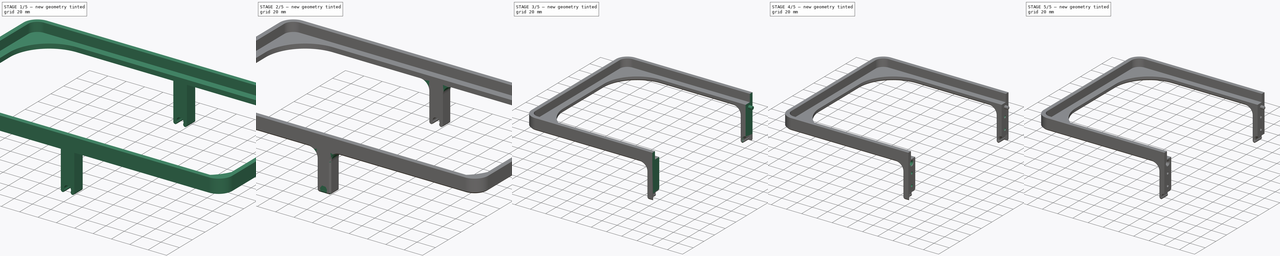
[diagram: build sequence overview — one tinted view per stage of 5, left to right]
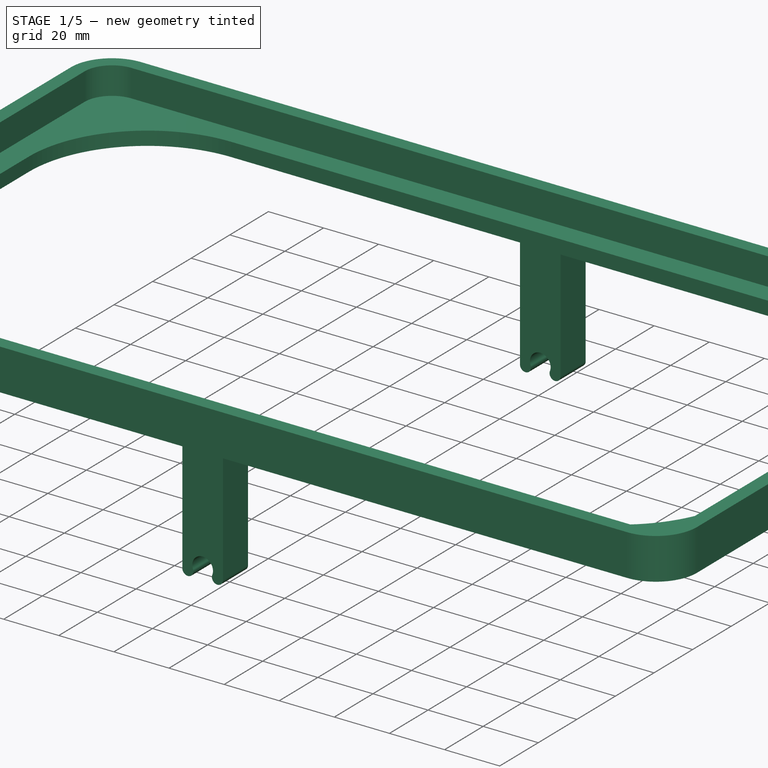
[diagram: stage 1 of 5 — iso view after this stage's code; geometry added in this stage tinted green]
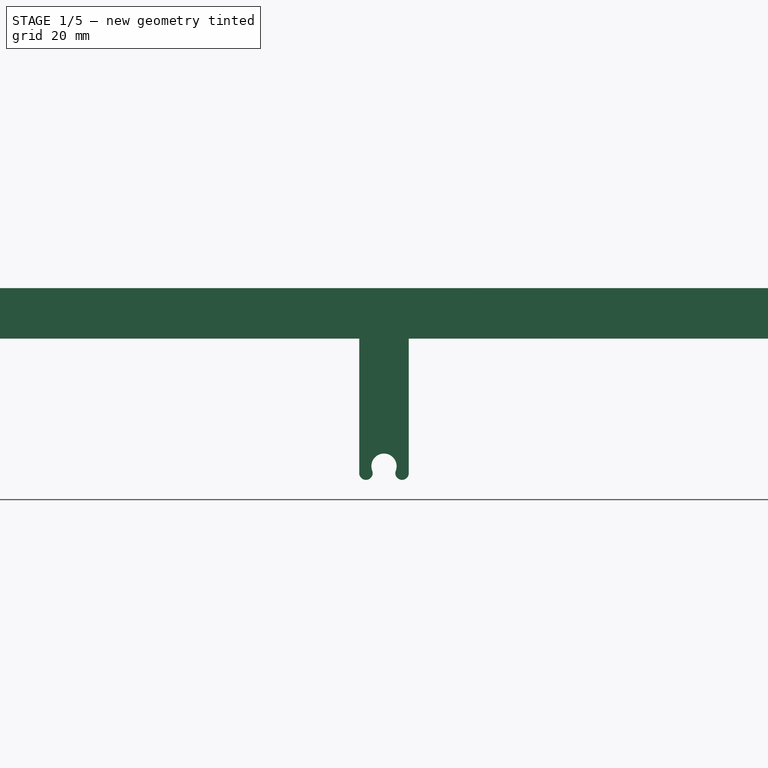
[diagram: stage 1 of 5 — front view after this stage's code; geometry added in this stage tinted green]
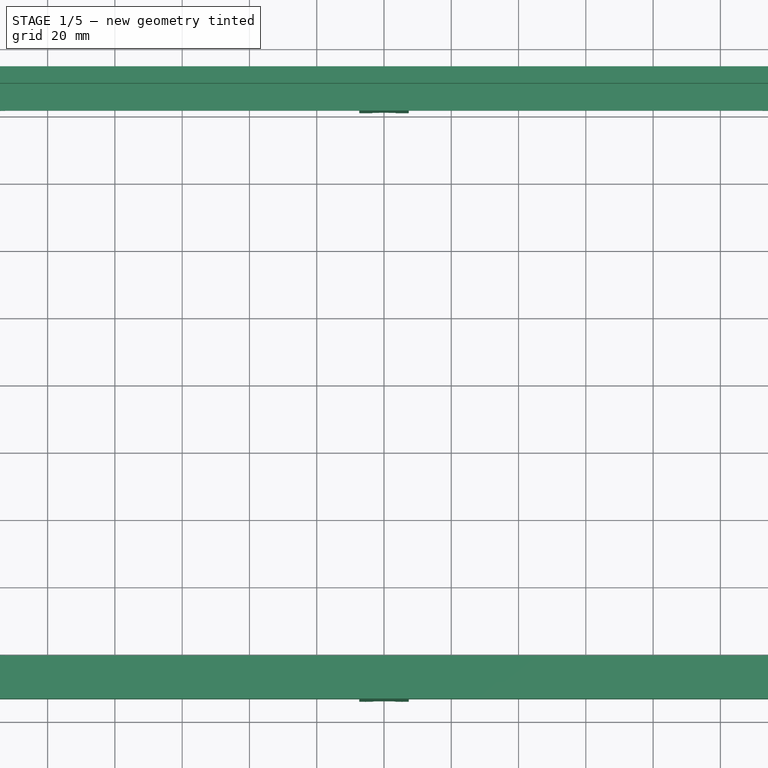
[diagram: stage 1 of 5 — top view after this stage's code; geometry added in this stage tinted green]
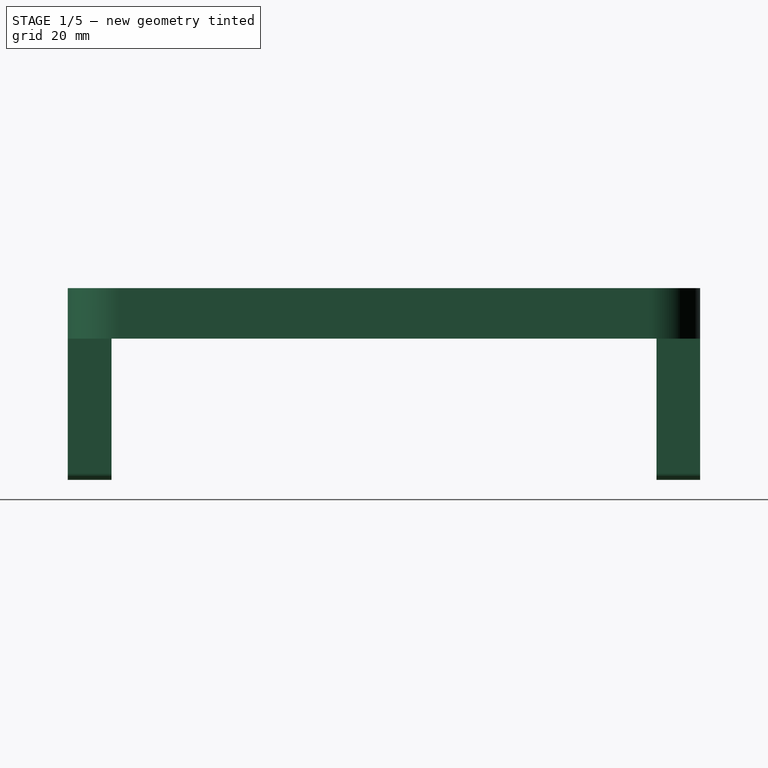
[diagram: stage 1 of 5 — right view after this stage's code; geometry added in this stage tinted green]
FCSTD DOCUMENT  (FreeCAD 0.19R21280 (Git))
Label: lid-other-half
License: All rights reserved
LicenseURL: http://en.wikipedia.org/wiki/All_rights_reserved
objects: Sketcher::SketchObject×10, PartDesign::Pocket×8, PartDesign::Pad×5, PartDesign::Chamfer×4, PartDesign::Mirrored×2, PartDesign::Fillet×1, PartDesign::Body×1
note: 49 computed .brp shape members not serialized (recipe doc carries the construction recipe); baked Part::Feature solids carry a one-line shape summary decoded from their .brp

FEATURE [Sketcher::SketchObject] Sketch
  MapMode = 5
  Support = -> [XY_Plane]
  sketch-geometry (16):
    g0: LineSegment StartX=-154 StartY=89 StartZ=0 EndX=154 EndY=89 EndZ=0
    g1: LineSegment StartX=164 StartY=79 StartZ=0 EndX=164 EndY=-79 EndZ=0
    g2: LineSegment StartX=154 StartY=-89 StartZ=0 EndX=-154 EndY=-89 EndZ=0
    g3: LineSegment StartX=-164 StartY=-79 StartZ=0 EndX=-164 EndY=79 EndZ=0
    g4: ArcOfCircle CenterX=-154 CenterY=79 CenterZ=0 NormalX=0 NormalY=0 NormalZ=1 AngleXU=0 Radius=10 StartAngle=1.5708 EndAngle=3.14159
    g5: ArcOfCircle CenterX=154 CenterY=79 CenterZ=0 NormalX=0 NormalY=0 NormalZ=1 AngleXU=0 Radius=10 StartAngle=-9e-16 EndAngle=1.5708
    g6: ArcOfCircle CenterX=154 CenterY=-79 CenterZ=0 NormalX=0 NormalY=0 NormalZ=1 AngleXU=0 Radius=10 StartAngle=4.71239 EndAngle=6.28319
    g7: ArcOfCircle CenterX=-154 CenterY=-79 CenterZ=0 NormalX=0 NormalY=0 NormalZ=1 AngleXU=0 Radius=10 StartAngle=3.14159 EndAngle=4.71239
    g8: LineSegment StartX=-154 StartY=94 StartZ=0 EndX=154 EndY=94 EndZ=0
    g9: LineSegment StartX=169 StartY=79 StartZ=0 EndX=169 EndY=-79 EndZ=0
    g10: LineSegment StartX=154 StartY=-94 StartZ=0 EndX=-154 EndY=-94 EndZ=0
    g11: LineSegment StartX=-169 StartY=-79 StartZ=0 EndX=-169 EndY=79 EndZ=0
    g12: ArcOfCircle CenterX=-154 CenterY=79 CenterZ=0 NormalX=0 NormalY=0 NormalZ=1 AngleXU=0 Radius=15 StartAngle=1.5708 EndAngle=3.14159
    g13: ArcOfCircle CenterX=154 CenterY=79 CenterZ=0 NormalX=0 NormalY=0 NormalZ=1 AngleXU=0 Radius=15 StartAngle=1e-16 EndAngle=1.5708
    g14: ArcOfCircle CenterX=154 CenterY=-79 CenterZ=0 NormalX=0 NormalY=0 NormalZ=1 AngleXU=0 Radius=15 StartAngle=4.71239 EndAngle=6.28319
    g15: ArcOfCircle CenterX=-154 CenterY=-79 CenterZ=0 NormalX=0 NormalY=0 NormalZ=1 AngleXU=0 Radius=15 StartAngle=3.14159 EndAngle=4.71239
  constraints (35):
    c: Tangent(g3,g4) = 1.5708
    c: Tangent(g0,g4) = 1.5708
    c: Tangent(g0,g5) = 1.5708
    c: Tangent(g1,g5) = 1.5708
    c: Tangent(g1,g6) = 1.5708
    c: Tangent(g2,g6) = 1.5708
    c: Tangent(g2,g7) = 1.5708
    c: Tangent(g3,g7) = 1.5708
    c: Equal(g5,g6)
    c: Equal(g6,g7)
    c: Equal(g7,g4)
    c: Symmetric(g3,g1,g-2)
    c: Symmetric(g3,g1,g-2)
    c: Symmetric(g3,g3,g-1)
    c: DistanceX(g3,g1) = 328
    c: DistanceY(g2,g0) = 178
    c: Radius(g5) = 10
    c: Tangent(g11,g12) = 1.5708
    c: Tangent(g8,g12) = 1.5708
    c: Tangent(g8,g13) = 1.5708
    c: Tangent(g9,g13) = 1.5708
    c: Tangent(g9,g14) = 1.5708
    c: Tangent(g10,g14) = 1.5708
    c: Tangent(g10,g15) = 1.5708
    c: Tangent(g11,g15) = 1.5708
    c: Horizontal(g8)
    c: Horizontal(g10)
    c: Vertical(g9)
    c: Vertical(g11)
    c: DistanceX(g11,g3) = 5
    c: DistanceY(g0,g8) = 5
    c: Equal(g14,g13)
    c: Equal(g13,g12)
    c: Coincident(g15,g7)
    c: Coincident(g13,g5)
FEATURE [PartDesign::Pad] Pad
  Length = 10
  Length2 = 100
  Profile = -> Sketch
  Type = 0
FEATURE [Sketcher::SketchObject] Sketch001
  MapMode = 5
  Support = -> [XY_Plane]
  sketch-geometry (32):
    g0: LineSegment [constr] StartX=-154 StartY=89 StartZ=0 EndX=154 EndY=89 EndZ=0
    g1: LineSegment [constr] StartX=164 StartY=79 StartZ=0 EndX=164 EndY=-79 EndZ=0
    g2: LineSegment [constr] StartX=154 StartY=-89 StartZ=0 EndX=-154 EndY=-89 EndZ=0
    g3: LineSegment [constr] StartX=-164 StartY=-79 StartZ=0 EndX=-164 EndY=79 EndZ=0
    g4: ArcOfCircle [constr] CenterX=-154 CenterY=79 CenterZ=0 NormalX=0 NormalY=0 NormalZ=1 AngleXU=0 Radius=10 StartAngle=1.5708 EndAngle=3.14159
    g5: ArcOfCircle [constr] CenterX=154 CenterY=79 CenterZ=0 NormalX=0 NormalY=0 NormalZ=1 AngleXU=0 Radius=10 StartAngle=-9e-16 EndAngle=1.5708
    g6: ArcOfCircle [constr] CenterX=154 CenterY=-79 CenterZ=0 NormalX=0 NormalY=0 NormalZ=1 AngleXU=0 Radius=10 StartAngle=4.71239 EndAngle=6.28319
    g7: ArcOfCircle [constr] CenterX=-154 CenterY=-79 CenterZ=0 NormalX=0 NormalY=0 NormalZ=1 AngleXU=0 Radius=10 StartAngle=3.14159 EndAngle=4.71239
    g8: LineSegment StartX=-154 StartY=94 StartZ=0 EndX=154 EndY=94 EndZ=0
    g9: LineSegment StartX=169 StartY=79 StartZ=0 EndX=169 EndY=-79 EndZ=0
    g10: LineSegment StartX=154 StartY=-94 StartZ=0 EndX=-154 EndY=-94 EndZ=0
    g11: LineSegment StartX=-169 StartY=-79 StartZ=0 EndX=-169 EndY=79 EndZ=0
    g12: ArcOfCircle CenterX=-154 CenterY=79 CenterZ=0 NormalX=0 NormalY=0 NormalZ=1 AngleXU=0 Radius=15 StartAngle=1.5708 EndAngle=3.14159
    g13: ArcOfCircle CenterX=154 CenterY=79 CenterZ=0 NormalX=0 NormalY=0 NormalZ=1 AngleXU=0 Radius=15 StartAngle=1e-16 EndAngle=1.5708
    g14: ArcOfCircle CenterX=154 CenterY=-79 CenterZ=0 NormalX=0 NormalY=0 NormalZ=1 AngleXU=0 Radius=15 StartAngle=4.71239 EndAngle=6.28319
    g15: ArcOfCircle CenterX=-154 CenterY=-79 CenterZ=0 NormalX=0 NormalY=0 NormalZ=1 AngleXU=0 Radius=15 StartAngle=3.14159 EndAngle=4.71239
    g16: LineSegment [constr] StartX=-150.5 StartY=37.81 StartZ=0 EndX=-150.5 EndY=-37.81 EndZ=0
    g17: LineSegment [constr] StartX=-112.31 StartY=-76 StartZ=0 EndX=112.31 EndY=-76 EndZ=0
    g18: LineSegment [constr] StartX=150.5 StartY=-37.81 StartZ=0 EndX=150.5 EndY=37.81 EndZ=0
    g19: LineSegment [constr] StartX=112.31 StartY=76 StartZ=0 EndX=-112.31 EndY=76 EndZ=0
    g20: ArcOfCircle [constr] CenterX=112.31 CenterY=37.81 CenterZ=0 NormalX=0 NormalY=0 NormalZ=1 AngleXU=0 Radius=38.19 StartAngle=0 EndAngle=1.5708
    g21: ArcOfCircle [constr] CenterX=112.31 CenterY=-37.81 CenterZ=0 NormalX=0 NormalY=0 NormalZ=1 AngleXU=0 Radius=38.19 StartAngle=4.71239 EndAngle=6.28319
    g22: ArcOfCircle [constr] CenterX=-112.31 CenterY=-37.81 CenterZ=0 NormalX=0 NormalY=0 NormalZ=1 AngleXU=0 Radius=38.19 StartAngle=3.14159 EndAngle=4.71239
    g23: ArcOfCircle [constr] CenterX=-112.31 CenterY=37.81 CenterZ=0 NormalX=0 NormalY=0 NormalZ=1 AngleXU=0 Radius=38.19 StartAngle=1.5708 EndAngle=3.14159
    g24: LineSegment StartX=112.31 StartY=81 StartZ=0 EndX=-112.31 EndY=81 EndZ=0
    g25: ArcOfCircle CenterX=-112.31 CenterY=37.81 CenterZ=0 NormalX=0 NormalY=0 NormalZ=1 AngleXU=0 Radius=43.19 StartAngle=1.5708 EndAngle=3.14159
    g26: LineSegment StartX=-155.5 StartY=37.81 StartZ=0 EndX=-155.5 EndY=-37.81 EndZ=0
    g27: ArcOfCircle CenterX=-112.31 CenterY=-37.81 CenterZ=0 NormalX=0 NormalY=0 NormalZ=1 AngleXU=0 Radius=43.19 StartAngle=3.14159 EndAngle=4.71239
    g28: LineSegment StartX=-112.31 StartY=-81 StartZ=0 EndX=112.31 EndY=-81 EndZ=0
    g29: ArcOfCircle CenterX=112.31 CenterY=-37.81 CenterZ=0 NormalX=0 NormalY=0 NormalZ=1 AngleXU=0 Radius=43.19 StartAngle=4.71239 EndAngle=6.28319
    g30: LineSegment StartX=155.5 StartY=-37.81 StartZ=0 EndX=155.5 EndY=37.81 EndZ=0
    g31: ArcOfCircle CenterX=112.31 CenterY=37.81 CenterZ=0 NormalX=0 NormalY=0 NormalZ=1 AngleXU=0 Radius=43.19 StartAngle=0 EndAngle=1.5708
  constraints (73):
    c: Tangent(g3,g4) = 1.5708
    c: Tangent(g0,g4) = 1.5708
    c: Tangent(g0,g5) = 1.5708
    c: Tangent(g1,g5) = 1.5708
    c: Tangent(g1,g6) = 1.5708
    c: Tangent(g2,g6) = 1.5708
    c: Tangent(g2,g7) = 1.5708
    c: Tangent(g3,g7) = 1.5708
    c: Equal(g5,g6)
    c: Equal(g6,g7)
    c: Equal(g7,g4)
    c: Symmetric(g3,g1,g-2)
    c: Symmetric(g3,g1,g-2)
    c: Symmetric(g3,g3,g-1)
    c: DistanceX(g3,g1) = 328
    c: DistanceY(g2,g0) = 178
    c: Radius(g5) = 10
    c: Tangent(g11,g12) = 1.5708
    c: Tangent(g8,g12) = 1.5708
    c: Tangent(g8,g13) = 1.5708
    c: Tangent(g9,g13) = 1.5708
    c: Tangent(g9,g14) = 1.5708
    c: Tangent(g10,g14) = 1.5708
    c: Tangent(g10,g15) = 1.5708
    c: Tangent(g11,g15) = 1.5708
    c: Horizontal(g8)
    c: Horizontal(g10)
    c: Vertical(g9)
    c: Vertical(g11)
    c: DistanceX(g11,g3) = 5
    c: DistanceY(g0,g8) = 5
    c: Equal(g14,g13)
    c: Equal(g13,g12)
    c: Coincident(g15,g7)
    c: Coincident(g13,g5)
    c: Vertical(g16)
    c: Horizontal(g17)
    c: Tangent(g19,g20) = -1.5708
    c: Tangent(g18,g20) = -1.5708
    c: Tangent(g18,g21) = -1.5708
    c: Tangent(g17,g21) = -1.5708
    c: Tangent(g17,g22) = -1.5708
    c: Tangent(g16,g22) = -1.5708
    c: Tangent(g16,g23) = -1.5708
    c: Tangent(g19,g23) = -1.5708
    c: DistanceX(g16,g18) = 301
    c: DistanceY(g17,g19) = 152
    c: Equal(g23,g20)
    c: Equal(g20,g21)
    c: Equal(g21,g22)
    c: Symmetric(g17,g19,g-1)
    c: Symmetric(g16,g18,g-2)
    c: Radius(g23) = 38.19
    c: Vertical(g26)
    c: Horizontal(g28)
    c: Tangent(g24,g31) = -1.5708
    c: Tangent(g30,g31) = -1.5708
    c: Tangent(g30,g29) = -1.5708
    c: Tangent(g28,g29) = -1.5708
    c: Tangent(g28,g27) = -1.5708
    c: Tangent(g26,g27) = -1.5708
    c: Tangent(g26,g25) = -1.5708
    c: Tangent(g24,g25) = -1.5708
    c: Vertical(g24,g19)
    c: Horizontal(g30,g18)
    c: Vertical(g24,g19)
    c: Horizontal(g24)
    c: Horizontal(g18,g29)
    c: Vertical(g28,g17)
    c: Vertical(g30)
    c: Vertical(g27,g17)
    c: Horizontal(g26,g16)
    c: DistanceY(g19,g24) = 5
FEATURE [PartDesign::Pad] Pad001
  BaseFeature = -> Pad
  Length = 5
  Length2 = 100
  Profile = -> Sketch001
  Reversed = true
  Type = 0
FEATURE [Sketcher::SketchObject] Sketch002
  ExternalGeometry = -> [Pad001]
  MapMode = 5
  Placement = pos=(0,94,0) rot=(0,0.707107,0.707107;3.14159rad)
  Support = -> [Pad001]
  sketch-geometry (6):
    g0: LineSegment StartX=-7.36667 StartY=-5 StartZ=0 EndX=7.36667 EndY=-5 EndZ=0
    g1: LineSegment StartX=-7.36667 StartY=-5 StartZ=0 EndX=-7.36667 EndY=-45 EndZ=0
    g2: LineSegment StartX=7.36667 StartY=-45 StartZ=0 EndX=7.36667 EndY=-5 EndZ=0
    g3: ArcOfCircle CenterX=5.36667 CenterY=-45 CenterZ=0 NormalX=0 NormalY=0 NormalZ=1 AngleXU=0 Radius=2 StartAngle=2.77438 EndAngle=6.28319
    g4: ArcOfCircle CenterX=-1e-16 CenterY=-42.9357 CenterZ=0 NormalX=0 NormalY=0 NormalZ=1 AngleXU=0 Radius=3.75 StartAngle=5.91598 EndAngle=9.79199
    g5: ArcOfCircle CenterX=-5.36667 CenterY=-45 CenterZ=0 NormalX=0 NormalY=0 NormalZ=1 AngleXU=0 Radius=2 StartAngle=3.14159 EndAngle=6.65039
  constraints (15):
    c: Symmetric(g0,g0,g-2)
    c: Coincident(g1,g0)
    c: Vertical(g1)
    c: Coincident(g2,g0)
    c: PointOnObject(g0,g-4)
    c: Symmetric(g2,g1,g-2)
    c: Tangent(g3,g2) = -1.5708
    c: Coincident(g5,g4)
    c: Tangent(g1,g5) = -1.5708
    c: Symmetric(g3,g4,g-2)
    c: Tangent(g4,g3) = 1.5708
    c: Diameter(g4) = 7.5
    c: Radius(g3) = 2
    c: DistanceX(g4,g3) = 7
    c: DistanceY(g1,g1) = 40
FEATURE [PartDesign::Pad] Pad002
  BaseFeature = -> Pad001
  Length = 10
  Length2 = 100
  Profile = -> Sketch002
  Reversed = true
  Type = 3
  UpToFace = -> Pad001 [Face27]
FEATURE [PartDesign::Mirrored] Mirrored
  BaseFeature = -> Pad002
  MirrorPlane = -> XZ_Plane
  Originals = -> [Pad002]
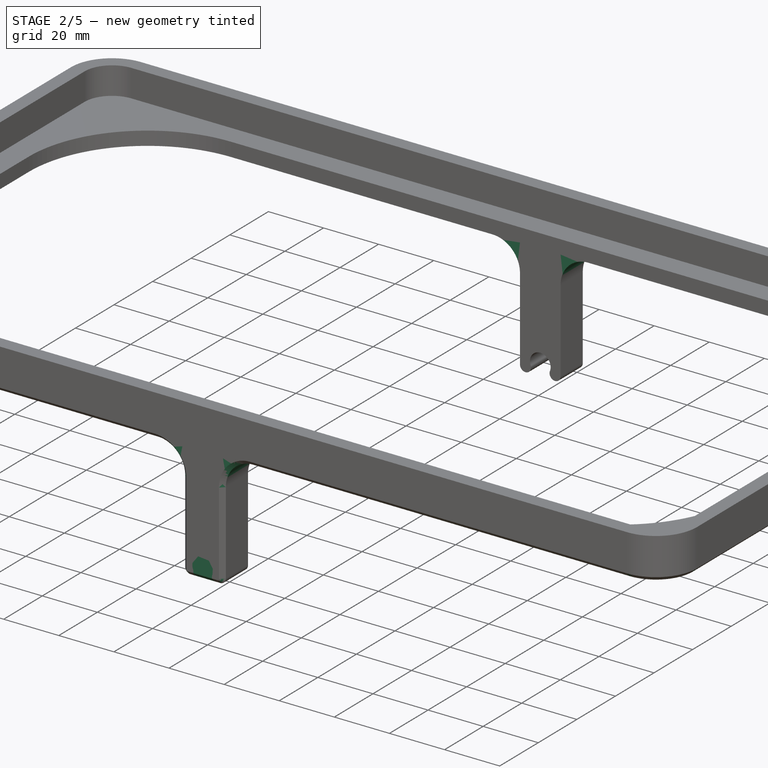
[diagram: stage 2 of 5 — iso view after this stage's code; geometry added in this stage tinted green]
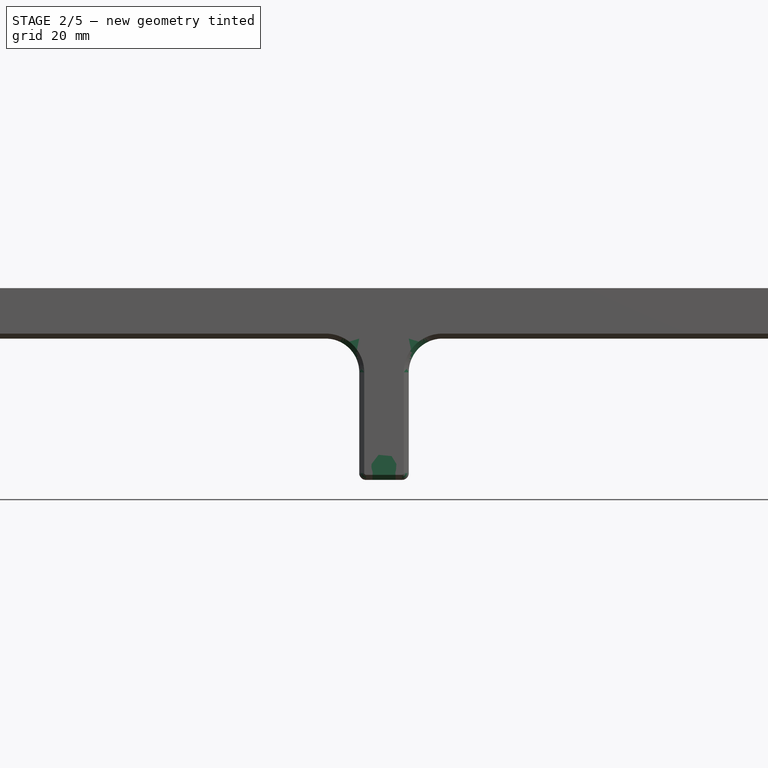
[diagram: stage 2 of 5 — front view after this stage's code; geometry added in this stage tinted green]
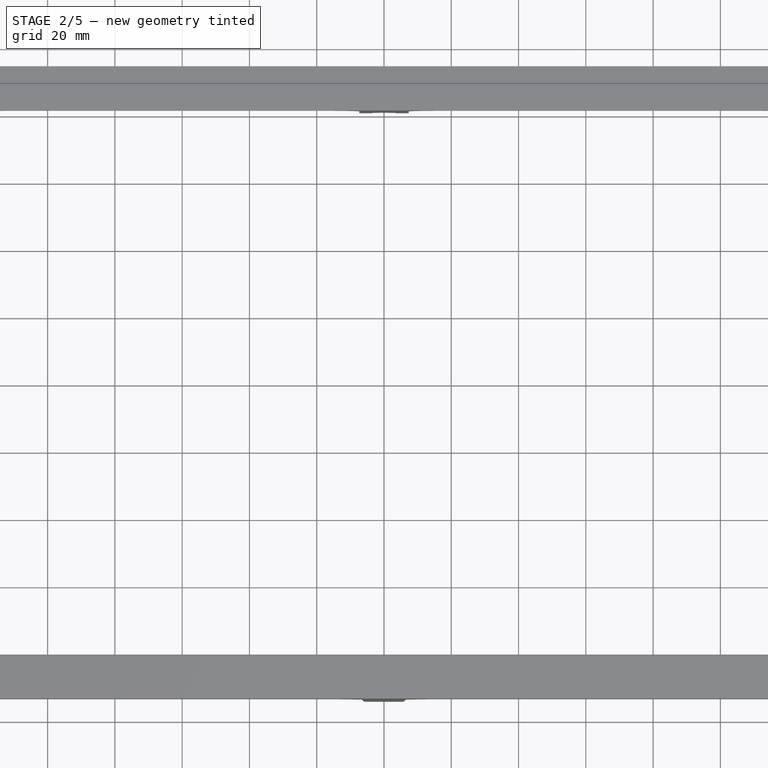
[diagram: stage 2 of 5 — top view after this stage's code; geometry added in this stage tinted green]
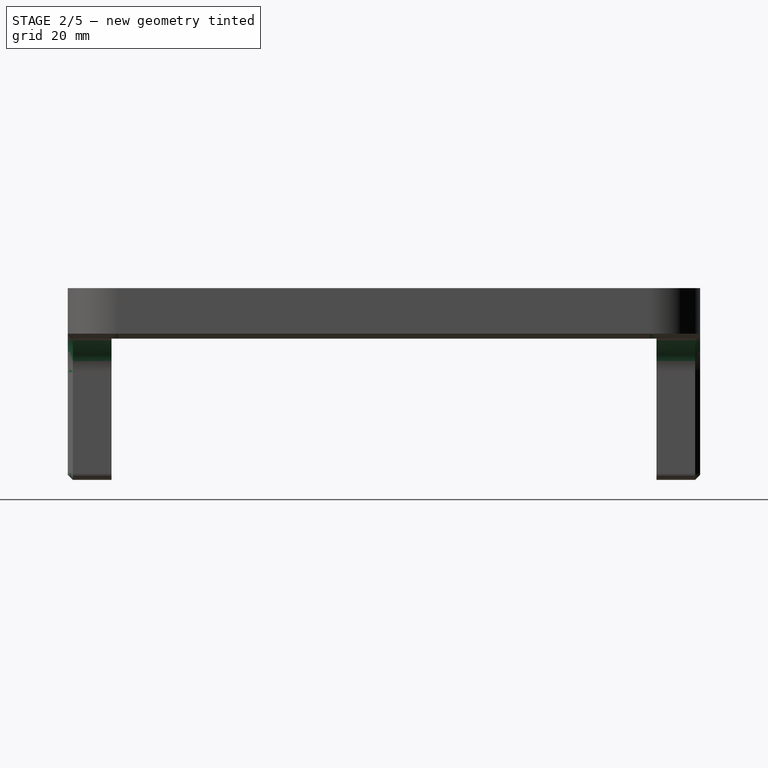
[diagram: stage 2 of 5 — right view after this stage's code; geometry added in this stage tinted green]
FEATURE [PartDesign::Fillet] Fillet
  Base = -> Mirrored [Edge100,Edge42,Edge36,Edge104]
  BaseFeature = -> Mirrored
  Radius = 10
  SupportTransform = true
FEATURE [Sketcher::SketchObject] Sketch003
  ExternalGeometry = -> [Fillet]
  MapMode = 5
  Placement = pos=(0,94,-3.38e-14) rot=(0,0.707107,0.707107;3.14159rad)
  Support = -> [Fillet]
  sketch-geometry (4):
    g0: LineSegment StartX=-5.36666 StartY=-47 StartZ=0 EndX=5.36667 EndY=-47 EndZ=0
    g1: ArcOfCircle CenterX=-5.36667 CenterY=-45 CenterZ=0 NormalX=0 NormalY=0 NormalZ=1 AngleXU=0 Radius=2 StartAngle=4.71239 EndAngle=6.65039
    g2: ArcOfCircle CenterX=5.36667 CenterY=-45 CenterZ=0 NormalX=0 NormalY=0 NormalZ=1 AngleXU=0 Radius=2 StartAngle=2.77438 EndAngle=4.71239
    g3: ArcOfCircle CenterX=7e-16 CenterY=-42.9357 CenterZ=0 NormalX=0 NormalY=0 NormalZ=1 AngleXU=0 Radius=3.75 StartAngle=5.91598 EndAngle=9.79199
  constraints (11):
    c: Tangent(g0,g-3)
    c: Coincident(g1,g0)
    c: Coincident(g1,g-3)
    c: Coincident(g1,g-4)
    c: Coincident(g2,g0)
    c: Coincident(g2,g-5)
    c: Coincident(g2,g-5)
    c: Tangent(g0,g-5)
    c: Coincident(g3,g2)
    c: Coincident(g3,g1)
    c: Coincident(g3,g-4)
FEATURE [PartDesign::Pad] Pad003
  BaseFeature = -> Fillet
  Length = 1.5
  Length2 = 100
  Profile = -> Sketch003
  Reversed = true
  Type = 0
FEATURE [PartDesign::Mirrored] Mirrored001
  BaseFeature = -> Pad003
  MirrorPlane = -> XZ_Plane
  Originals = -> [Pad003]
FEATURE [PartDesign::Chamfer] Chamfer
  Angle = 45
  Base = -> Mirrored001 [Edge103]
  BaseFeature = -> Mirrored001
  ChamferType = 0
  FlipDirection = false
  Size = 1.49
  Size2 = 1
  SupportTransform = true
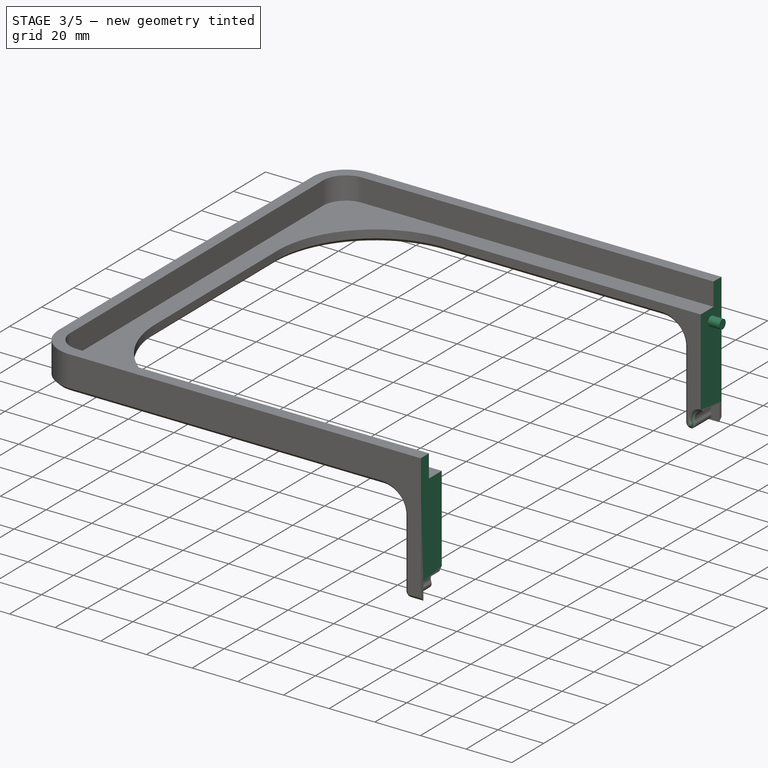
[diagram: stage 3 of 5 — iso view after this stage's code; geometry added in this stage tinted green]
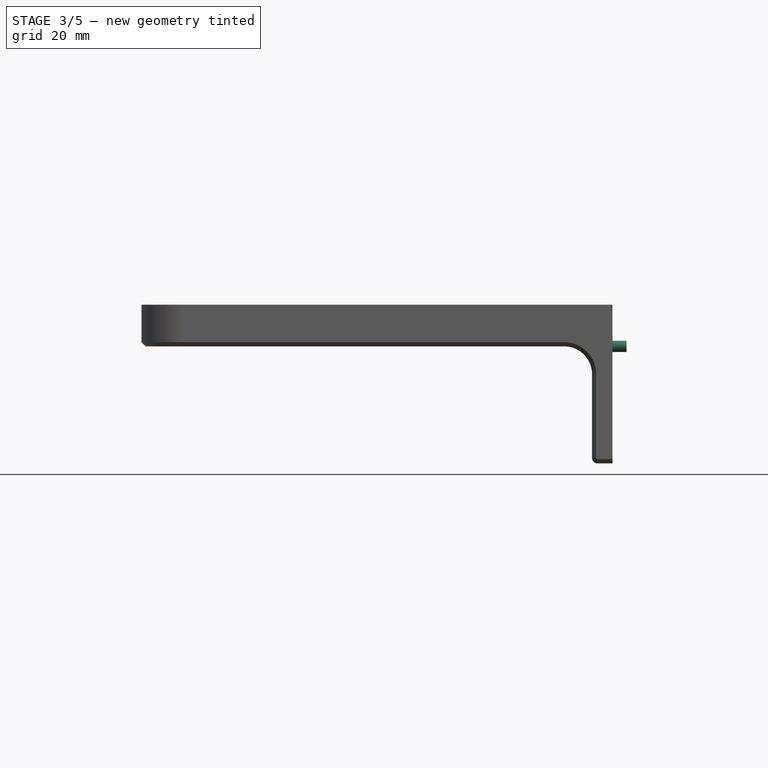
[diagram: stage 3 of 5 — front view after this stage's code; geometry added in this stage tinted green]
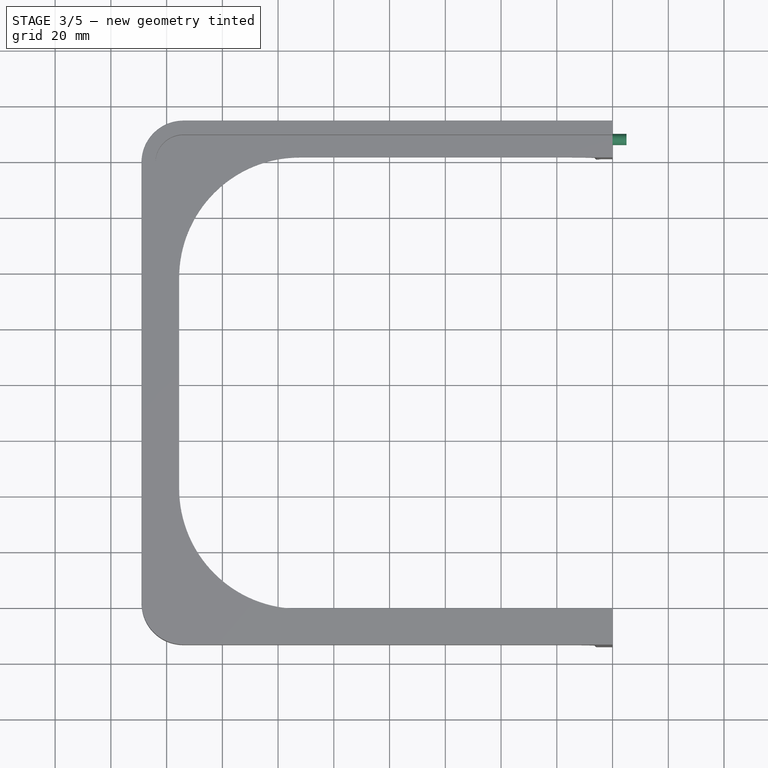
[diagram: stage 3 of 5 — top view after this stage's code; geometry added in this stage tinted green]
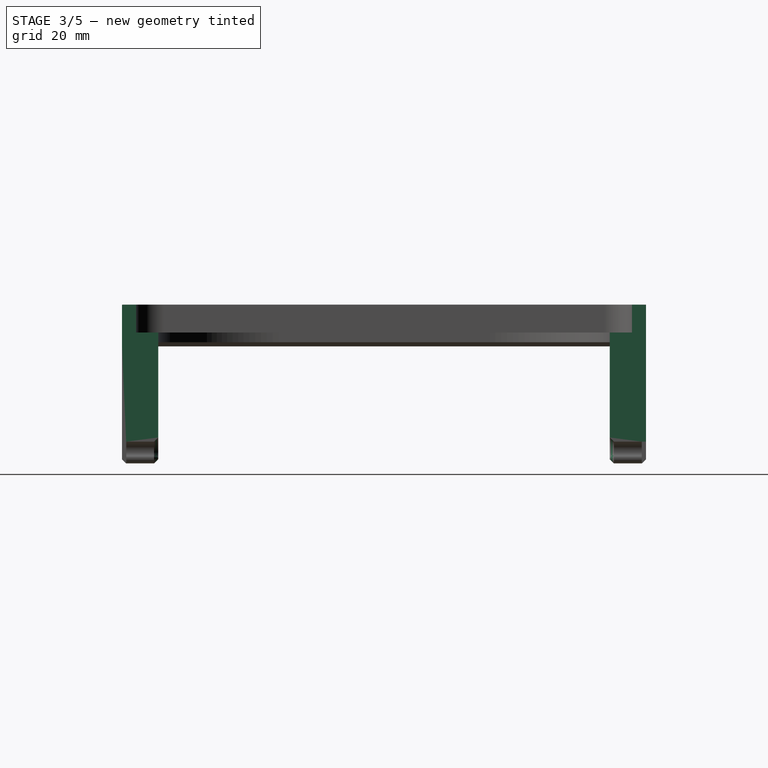
[diagram: stage 3 of 5 — right view after this stage's code; geometry added in this stage tinted green]
FEATURE [PartDesign::Chamfer] Chamfer001
  Angle = 45
  Base = -> Chamfer [Edge83]
  BaseFeature = -> Chamfer
  ChamferType = 0
  FlipDirection = false
  Size = 1.5
  Size2 = 1
  SupportTransform = true
FEATURE [PartDesign::Chamfer] Chamfer002
  Angle = 45
  Base = -> Chamfer001 [Edge160]
  BaseFeature = -> Chamfer001
  ChamferType = 0
  FlipDirection = false
  Size = 0.1
  Size2 = 1
  SupportTransform = true
FEATURE [Sketcher::SketchObject] Sketch004
  MapMode = 5
  Placement = pos=(0,0,10) rot=(0,0,1;0rad)
  Support = -> [Chamfer002]
  sketch-geometry (4):
    g0: LineSegment StartX=0 StartY=119.45 StartZ=0 EndX=0 EndY=-119.45 EndZ=0
    g1: LineSegment StartX=0 StartY=119.45 StartZ=0 EndX=200.233 EndY=119.45 EndZ=0
    g2: LineSegment StartX=200.233 StartY=119.45 StartZ=0 EndX=200.233 EndY=-119.45 EndZ=0
    g3: LineSegment StartX=200.233 StartY=-119.45 StartZ=0 EndX=0 EndY=-119.45 EndZ=0
  constraints (9):
    c: PointOnObject(g0,g-2)
    c: Symmetric(g0,g0,g-1)
    c: Coincident(g0,g1)
    c: Horizontal(g1)
    c: Coincident(g1,g2)
    c: Vertical(g2)
    c: Coincident(g2,g3)
    c: Coincident(g3,g0)
    c: Horizontal(g3)
FEATURE [PartDesign::Pocket] Pocket
  BaseFeature = -> Chamfer002
  Length = 5
  Length2 = 100
  Profile = -> Sketch004
  Type = 1
FEATURE [Sketcher::SketchObject] Sketch005
  ExternalGeometry = -> [Pocket]
  MapMode = 5
  Placement = pos=(0,0,0) rot=(0.57735,0.57735,0.57735;2.0944rad)
  Support = -> [Pocket]
  sketch-geometry (3):
    g0: LineSegment [constr] StartX=94 StartY=0 StartZ=0 EndX=81 EndY=0 EndZ=0
    g1: LineSegment [constr] StartX=87.5 StartY=-1e-16 StartZ=0 EndX=87.5 EndY=-5 EndZ=0
    g2: Circle CenterX=87.5 CenterY=-5 CenterZ=0 NormalX=0 NormalY=0 NormalZ=1 AngleXU=0 Radius=2
  constraints (7):
    c: Coincident(g0,g-3)
    c: Coincident(g0,g-4)
    c: PointOnObject(g1,g0)
    c: Symmetric(g0,g0,g1)
    c: Coincident(g2,g1)
    c: Diameter(g2) = 4
    c: DistanceY(g1,g1) = 5
FEATURE [PartDesign::Pad] Pad004
  BaseFeature = -> Pocket
  Length = 5
  Length2 = 100
  Profile = -> Sketch005
  Type = 0
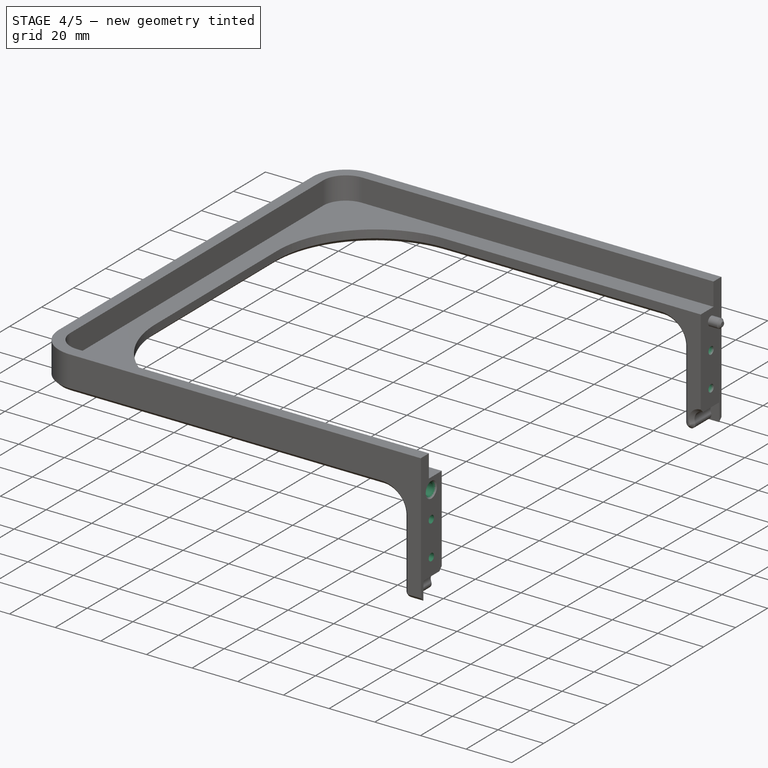
[diagram: stage 4 of 5 — iso view after this stage's code; geometry added in this stage tinted green]
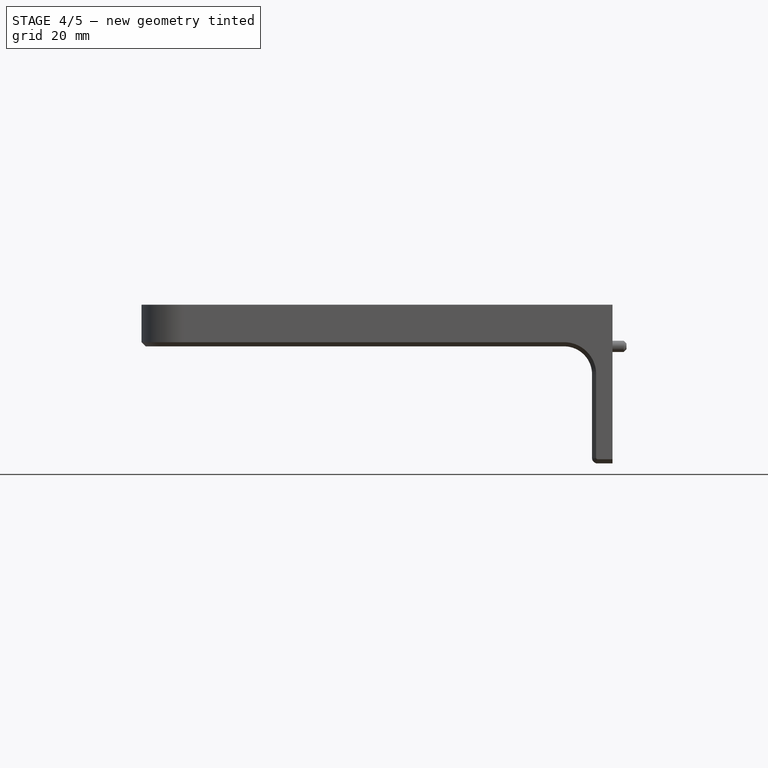
[diagram: stage 4 of 5 — front view after this stage's code; geometry added in this stage tinted green]
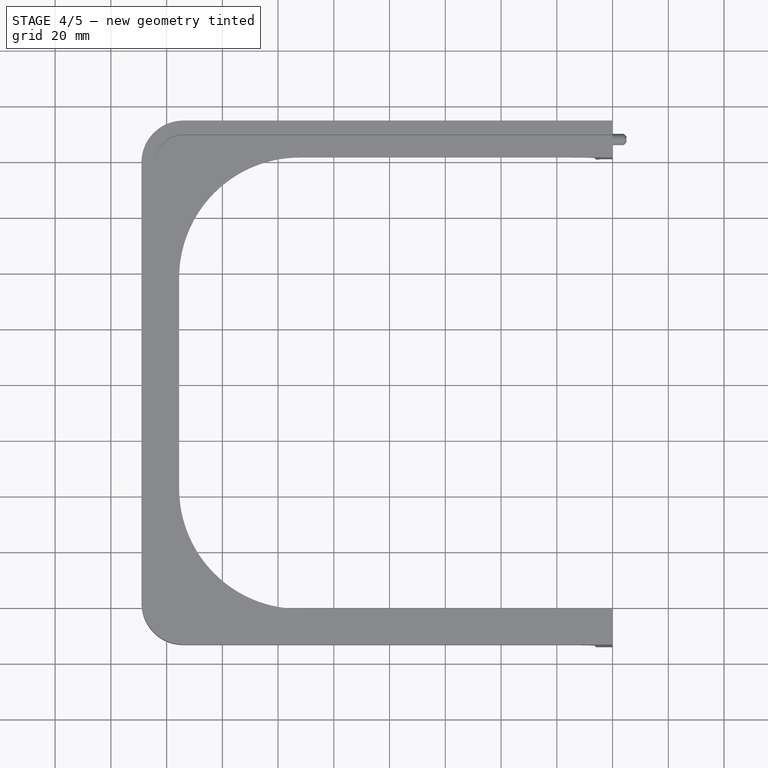
[diagram: stage 4 of 5 — top view after this stage's code; geometry added in this stage tinted green]
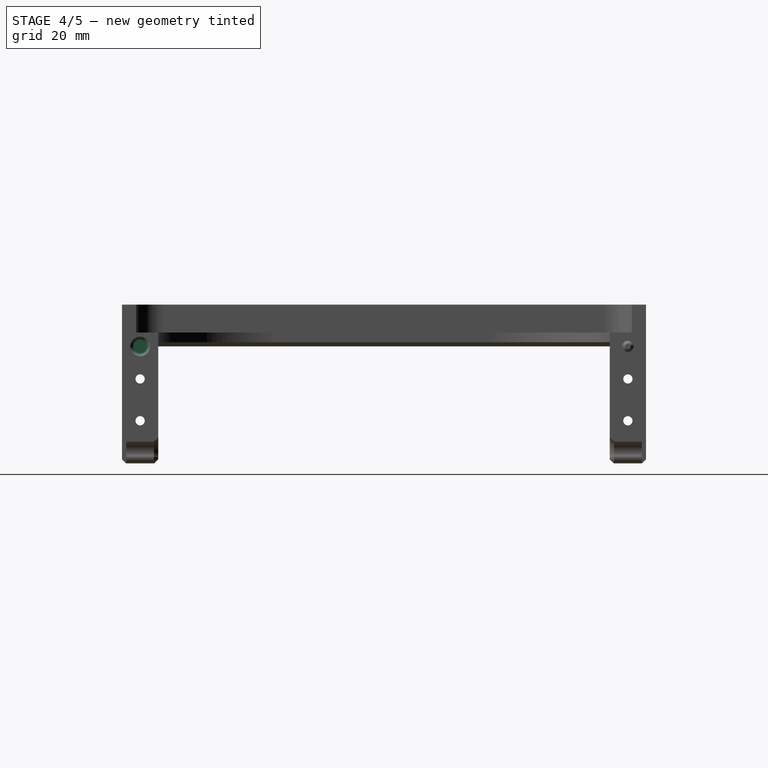
[diagram: stage 4 of 5 — right view after this stage's code; geometry added in this stage tinted green]
FEATURE [Sketcher::SketchObject] Sketch006
  ExternalGeometry = -> [Pad004]
  MapMode = 5
  Placement = pos=(0,0,0) rot=(0.57735,0.57735,0.57735;2.0944rad)
  Support = -> [Pad004]
  sketch-geometry (3):
    g0: LineSegment [constr] StartX=-81 StartY=0 StartZ=0 EndX=-94 EndY=0 EndZ=0
    g1: LineSegment [constr] StartX=-87.5 StartY=4e-16 StartZ=0 EndX=-87.5 EndY=-5 EndZ=0
    g2: Circle CenterX=-87.5 CenterY=-5 CenterZ=0 NormalX=0 NormalY=0 NormalZ=1 AngleXU=0 Radius=2.5
  constraints (7):
    c: Coincident(g0,g-4)
    c: Coincident(g0,g-3)
    c: PointOnObject(g1,g0)
    c: Symmetric(g0,g0,g1)
    c: Coincident(g2,g1)
    c: Diameter(g2) = 5
    c: DistanceY(g1,g1) = 5
FEATURE [PartDesign::Pocket] Pocket001
  BaseFeature = -> Pad004
  Length = 5.5
  Length2 = 100
  Profile = -> Sketch006
  Type = 0
FEATURE [PartDesign::Chamfer] Chamfer003
  Angle = 45
  Base = -> Pocket001 [Edge183,Edge19]
  BaseFeature = -> Pocket001
  ChamferType = 0
  FlipDirection = false
  Size = 1
  Size2 = 1
  SupportTransform = true
FEATURE [Sketcher::SketchObject] Sketch007
  ExternalGeometry = -> [Chamfer003]
  MapMode = 5
  Placement = pos=(0,0,0) rot=(0.57735,0.57735,0.57735;2.0944rad)
  Support = -> [Chamfer003]
  sketch-geometry (8):
    g0: LineSegment [constr] StartX=94 StartY=-39.1857 StartZ=0 EndX=81 EndY=-39.1857 EndZ=0
    g1: LineSegment [constr] StartX=87.5 StartY=-39.1857 StartZ=0 EndX=87.5 EndY=-31.6857 EndZ=0
    g2: Circle CenterX=87.5 CenterY=-16.6857 CenterZ=0 NormalX=0 NormalY=0 NormalZ=1 AngleXU=0 Radius=1.65
    g3: Circle CenterX=87.5 CenterY=-31.6857 CenterZ=0 NormalX=0 NormalY=0 NormalZ=1 AngleXU=0 Radius=1.65
    g4: Circle CenterX=-87.5 CenterY=-16.6857 CenterZ=0 NormalX=0 NormalY=0 NormalZ=1 AngleXU=0 Radius=1.65
    g5: Circle CenterX=-87.5 CenterY=-31.6857 CenterZ=0 NormalX=0 NormalY=0 NormalZ=1 AngleXU=0 Radius=1.65
    g6: LineSegment [constr] StartX=87.5 StartY=-31.6857 StartZ=0 EndX=87.5 EndY=-24.1857 EndZ=0
    g7: LineSegment [constr] StartX=87.5 StartY=-24.1857 StartZ=0 EndX=87.5 EndY=-16.6857 EndZ=0
  constraints (20):
    c: Coincident(g0,g-4)
    c: PointOnObject(g0,g-3)
    c: Horizontal(g0)
    c: PointOnObject(g1,g0)
    c: Symmetric(g0,g0,g1)
    c: Coincident(g3,g1)
    c: Equal(g3,g2)
    c: Equal(g4,g5)
    c: Equal(g5,g2)
    c: Symmetric(g4,g2,g-2)
    c: Symmetric(g5,g1,g-2)
    c: Diameter(g2) = 3.3
    c: DistanceY(g1,g1) = 7.5
    c: Coincident(g6,g3)
    c: Vertical(g6)
    c: Coincident(g7,g6)
    c: Coincident(g7,g2)
    c: Vertical(g7)
    c: Equal(g1,g6)
    c: Equal(g6,g7)
FEATURE [PartDesign::Pocket] Pocket002
  BaseFeature = -> Chamfer003
  Length = 5
  Length2 = 100
  Profile = -> Sketch007
  Type = 1
FEATURE [Sketcher::SketchObject] Sketch008
  ExternalGeometry = -> [Pocket002]
  MapMode = 5
  Placement = pos=(-7.36667,0,-1e-16) rot=(0.57735,-0.57735,-0.57735;2.0944rad)
  Support = -> [Pocket002]
  sketch-geometry (2):
    g0: Circle CenterX=-87.5 CenterY=-31.6857 CenterZ=0 NormalX=0 NormalY=0 NormalZ=1 AngleXU=0 Radius=2
    g1: Circle CenterX=-87.5 CenterY=-16.6857 CenterZ=0 NormalX=0 NormalY=0 NormalZ=1 AngleXU=0 Radius=2
  constraints (4):
    c: Coincident(g0,g-4)
    c: Coincident(g1,g-3)
    c: Equal(g1,g0)
    c: Diameter(g0) = 4
FEATURE [PartDesign::Pocket] Pocket003
  BaseFeature = -> Pocket002
  Length = 6
  Length2 = 100
  Profile = -> Sketch008
  Type = 0
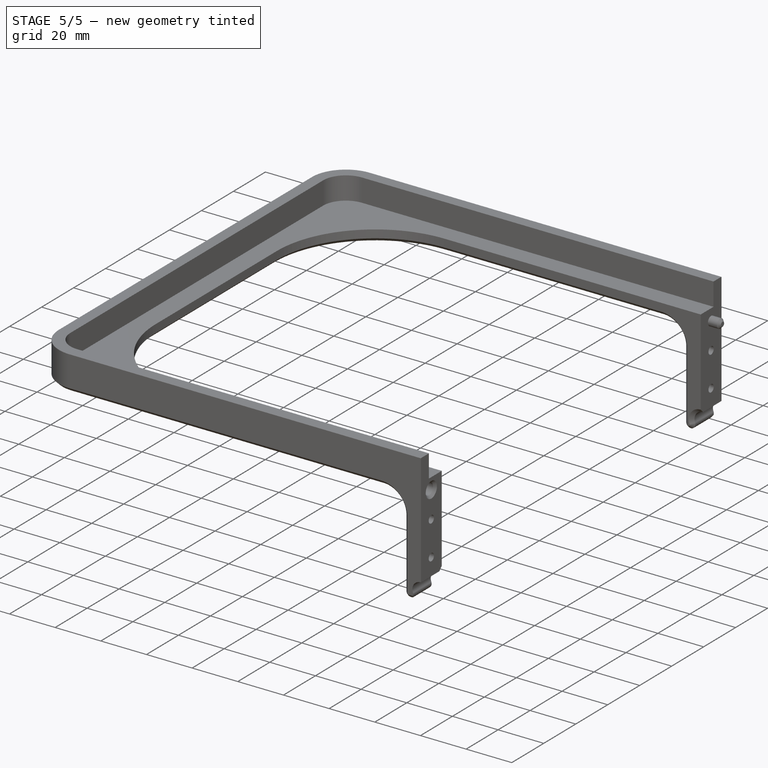
[diagram: stage 5 of 5 — iso view after this stage's code; geometry added in this stage tinted green]
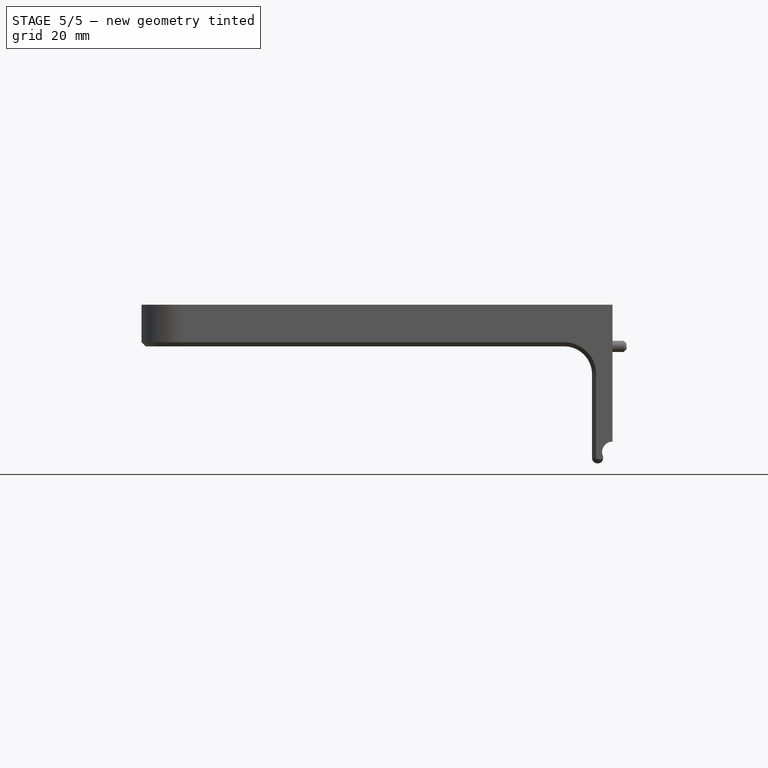
[diagram: stage 5 of 5 — front view after this stage's code; geometry added in this stage tinted green]
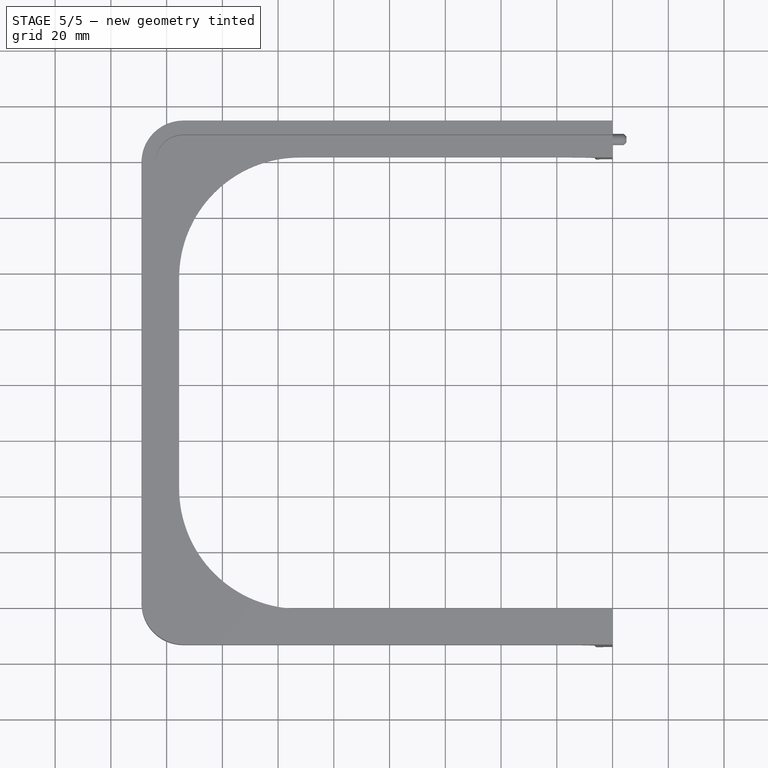
[diagram: stage 5 of 5 — top view after this stage's code; geometry added in this stage tinted green]
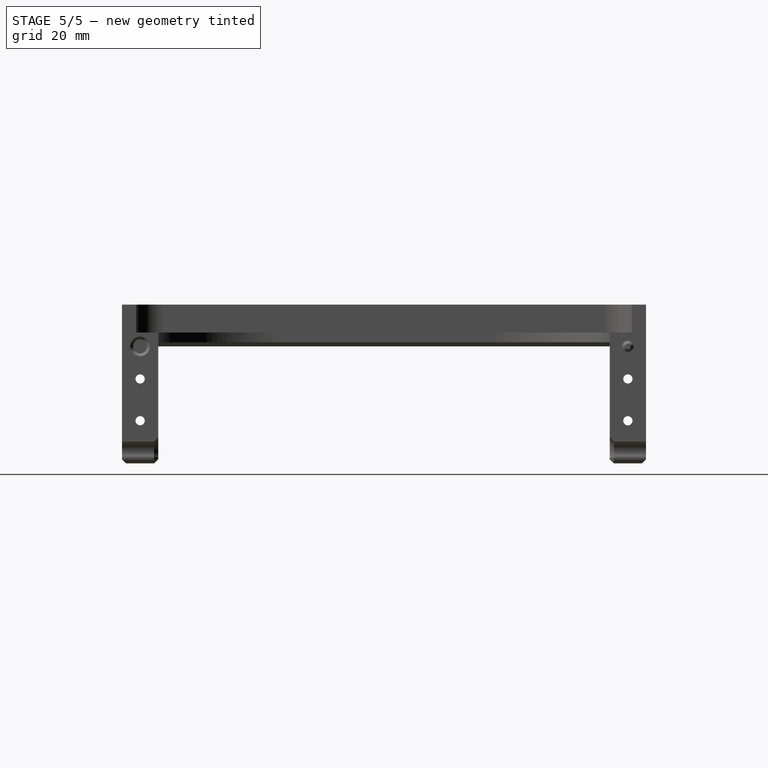
[diagram: stage 5 of 5 — right view after this stage's code; geometry added in this stage tinted green]
FEATURE [PartDesign::Pocket] Pocket004
  BaseFeature = -> Pocket003
  Length = 5
  Length2 = 100
  Profile = -> Sketch008
  Reversed = true
  Type = 1
FEATURE [Sketcher::SketchObject] Sketch009
  ExternalGeometry = -> [Pocket004]
  MapMode = 5
  Placement = pos=(-7.36667,0,-1e-16) rot=(0.57735,-0.57735,-0.57735;2.0944rad)
  Support = -> [Pocket004]
  sketch-geometry (2):
    g0: Circle CenterX=87.5 CenterY=-16.6857 CenterZ=0 NormalX=0 NormalY=0 NormalZ=1 AngleXU=0 Radius=3
    g1: Circle CenterX=87.5 CenterY=-31.6857 CenterZ=0 NormalX=0 NormalY=0 NormalZ=1 AngleXU=0 Radius=3
  constraints (4):
    c: Coincident(g0,g-3)
    c: Coincident(g1,g-4)
    c: Equal(g0,g1)
    c: Diameter(g0) = 6
FEATURE [PartDesign::Pocket] Pocket005
  BaseFeature = -> Pocket004
  Length = 3
  Length2 = 100
  Profile = -> Sketch009
  Type = 0
FEATURE [PartDesign::Pocket] Pocket006
  BaseFeature = -> Pocket005
  Length = 5
  Length2 = 100
  Profile = -> Sketch009
  Reversed = true
  Type = 1
FEATURE [PartDesign::Pocket] Pocket007
  BaseFeature = -> Pocket006
  Length = 5
  Length2 = 100
  Midplane = true
  Profile = -> Pocket006 [Face59]
  Type = 1
FEATURE [PartDesign::Body] Body
  Group = -> [Sketch,Pad,Pad001,Sketch002,Pad002,Mirrored,Fillet,Sketch003,Pad003,Mirrored001,Chamfer,Chamfer001,Chamfer002,Sketch004,Pocket,Sketch005,Pad004,Sketch006,Pocket001,Chamfer003,Sketch007,Pocket002,Sketch008,Pocket003,Pocket004,Sketch009,Pocket005,Pocket006,Pocket007]
  Origin = -> Origin
  Tip = -> Pocket007
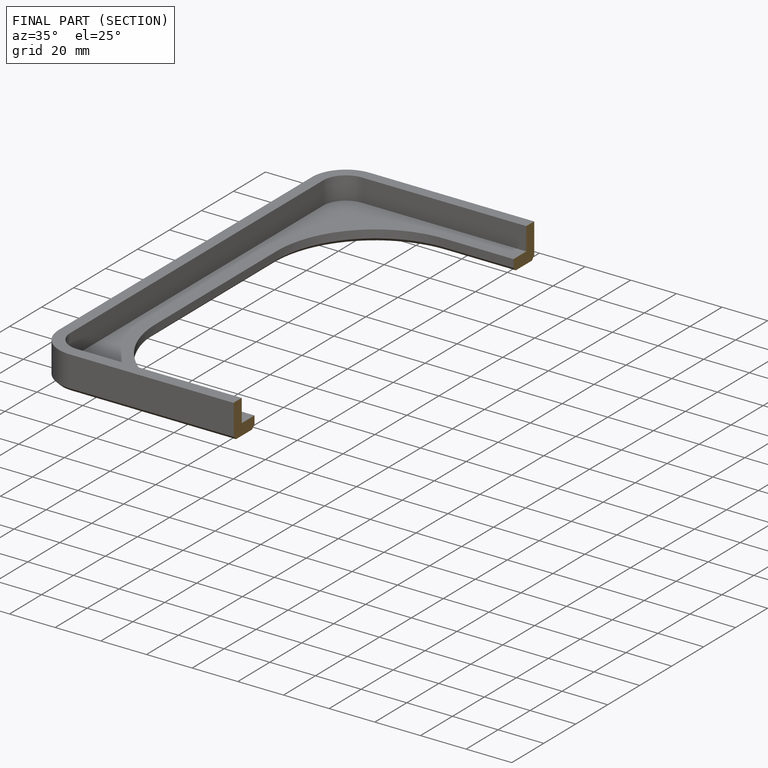
[diagram: finished part — half-section view (interior)]
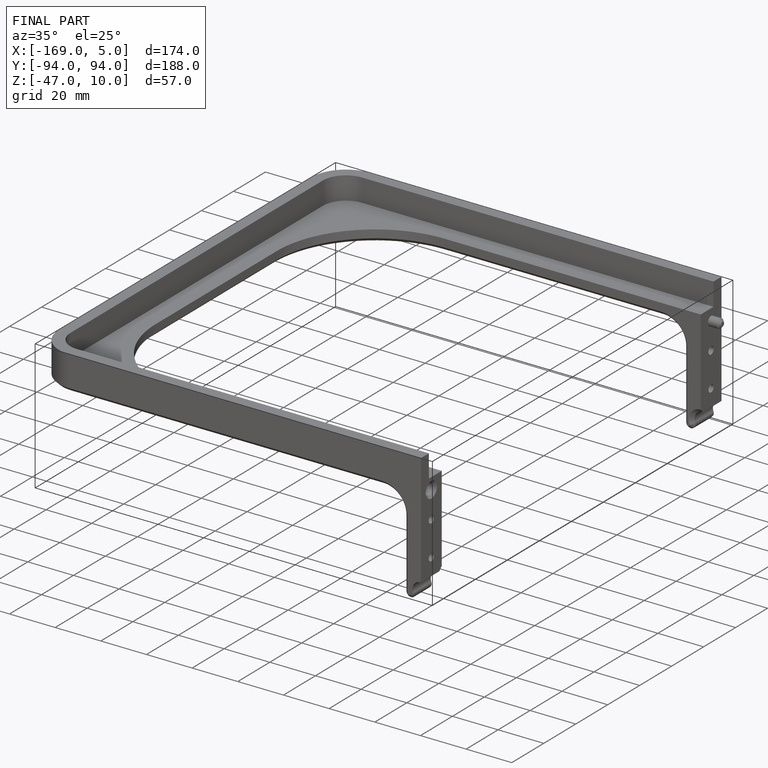
[diagram: finished part — iso view with bounding-box wireframe]
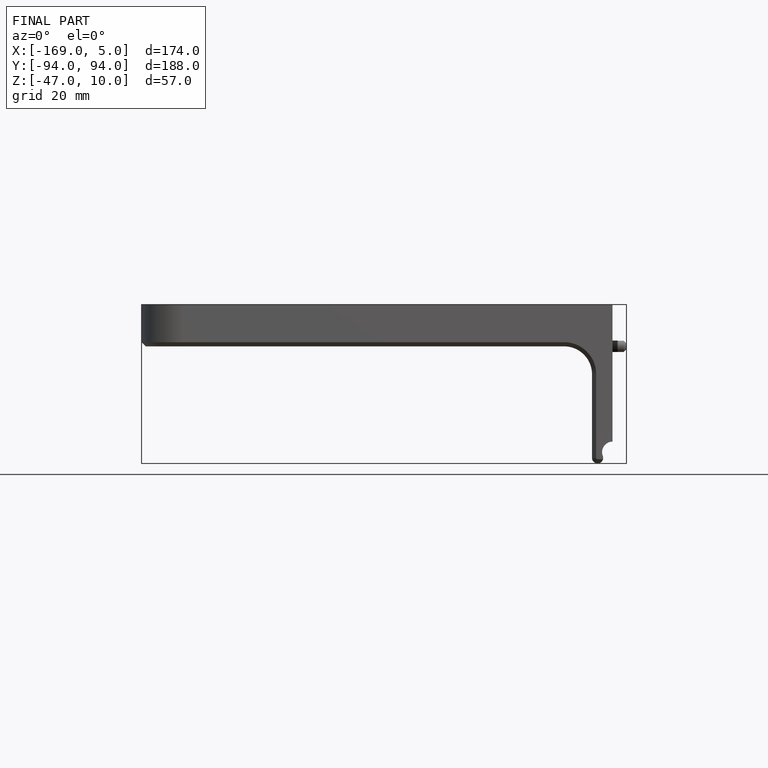
[diagram: finished part — front view with bounding-box wireframe]
